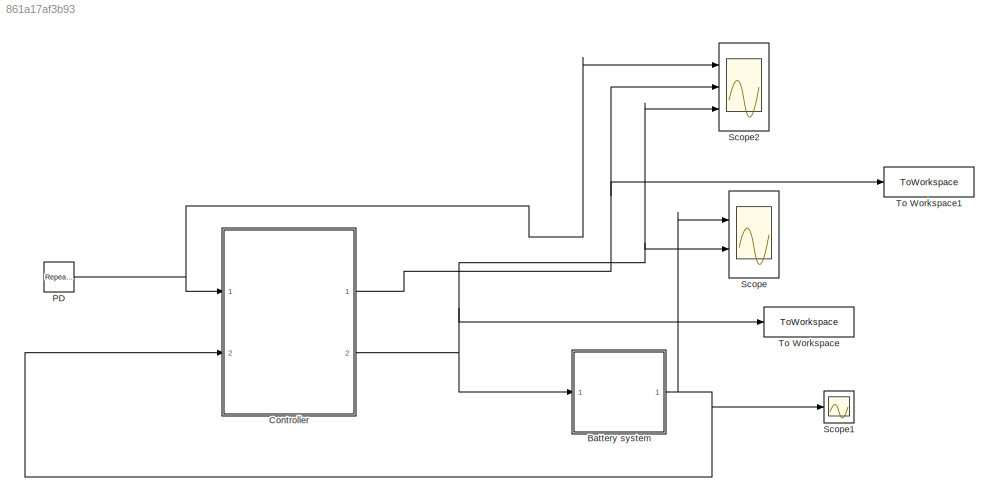
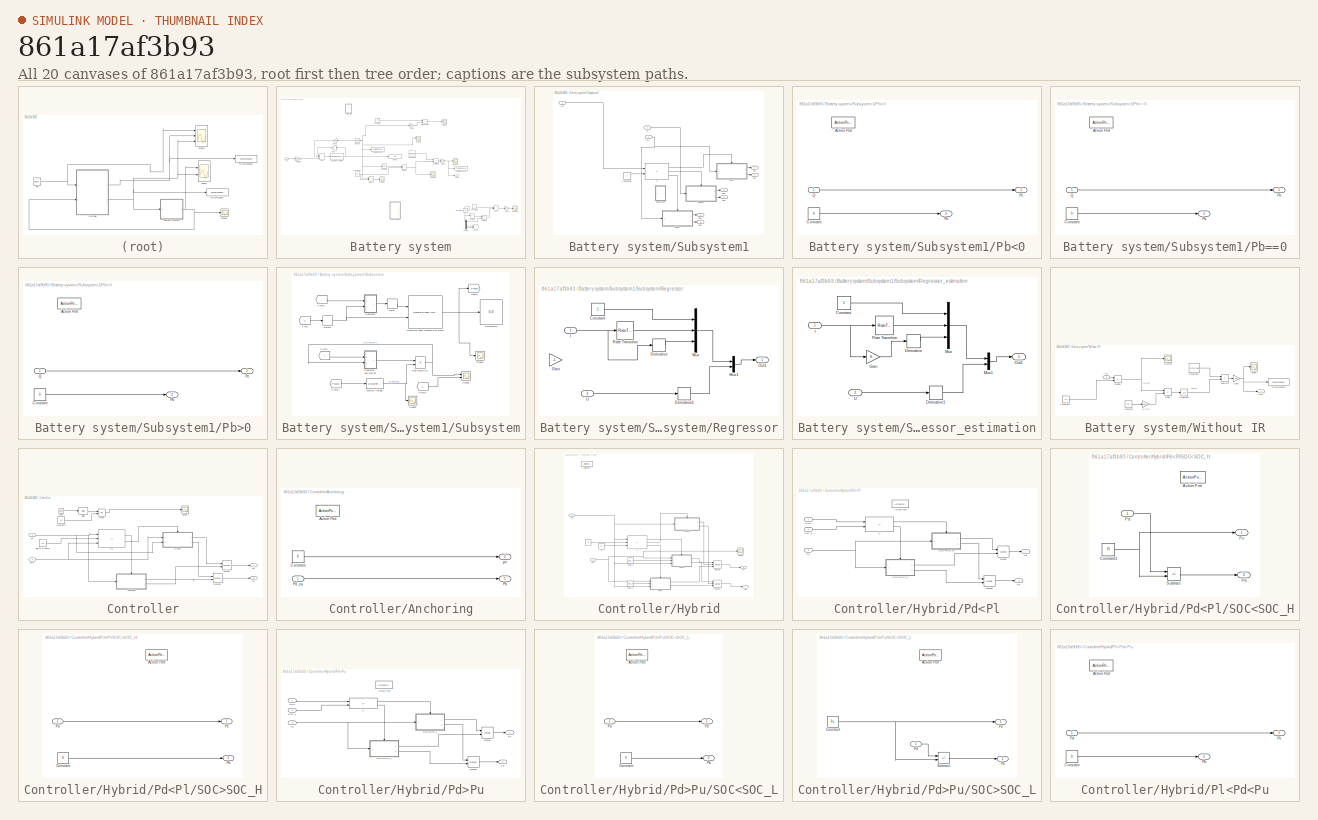
[diagram: thumbnail index - all 20 canvases of the model, root first then tree order]
MODEL slx_861a17af3b93
KIND model
CONFIG AbsTol = auto
CONFIG EnableMultiTasking = off
CONFIG FixedStep = auto
CONFIG MaxStep = auto
CONFIG MinStep = auto
CONFIG RelTol = 1
CONFIG SampleTimeConstraint = Unconstrained
CONFIG SolverName = VariableStepAuto
CONFIG StartTime = 0.0
CONFIG StopTime = 274
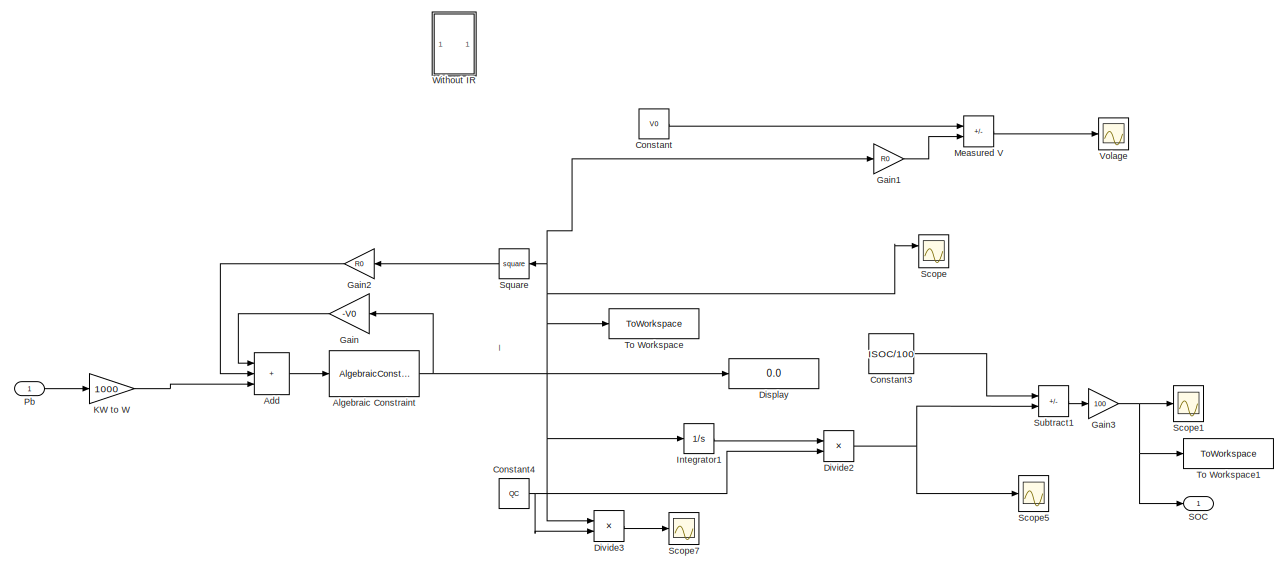
[diagram: Battery system - part 1/2, full width, middle band]
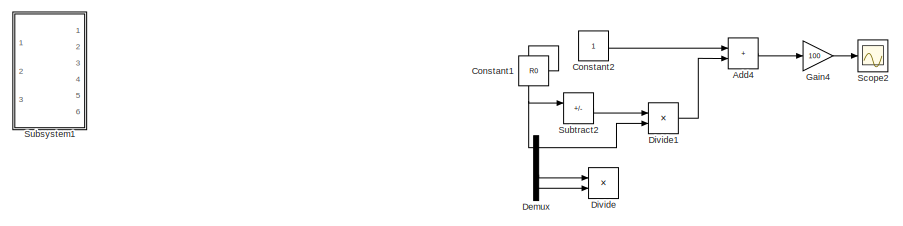
[diagram: Battery system - part 2/2, bottom right region]
BLOCK [SubSystem] Battery system
  Ports = [1, 1]
  RequestExecContextInheritance = off
BLOCK [Sum] Battery system/Add
  IconShape = rectangular
  Inputs = +++
  Ports = [3, 1]
BLOCK [Sum] Battery system/Add4
  Commented = on
  IconShape = rectangular
  Ports = [2, 1]
BLOCK [AlgebraicConstraint] Battery system/Algebraic Constraint
  InitialGuess = -999999999999
BLOCK [Constant] Battery system/Constant
  Value = V0
BLOCK [Constant] Battery system/Constant1
  Commented = on
  Value = R0
BLOCK [Constant] Battery system/Constant2
  Commented = on
BLOCK [Constant] Battery system/Constant3
  Value = ISOC/100
BLOCK [Constant] Battery system/Constant4
  Value = QC
BLOCK [Demux] Battery system/Demux
  Commented = on
  Ports = [1, 4]
BLOCK [Display] Battery system/Display
  Decimation = 1
  Ports = [1]
BLOCK [Product] Battery system/Divide
  Commented = on
  Inputs = */
  Ports = [2, 1]
BLOCK [Product] Battery system/Divide1
  Commented = on
  Inputs = */
  Ports = [2, 1]
BLOCK [Product] Battery system/Divide2
  Inputs = */
  Ports = [2, 1]
BLOCK [Product] Battery system/Divide3
  Inputs = */
  Ports = [2, 1]
BLOCK [Gain] Battery system/Gain
  Gain = -V0
  NameLocation = top
BLOCK [Gain] Battery system/Gain1
  Gain = R0
BLOCK [Gain] Battery system/Gain2
  Gain = R0
  NameLocation = top
BLOCK [Gain] Battery system/Gain3
  Gain = 100
BLOCK [Gain] Battery system/Gain4
  Commented = on
  Gain = 100
BLOCK [Integrator] Battery system/Integrator1
  Ports = [1, 1]
BLOCK [Gain] Battery system/KW to W
  Gain = 1000
BLOCK [Sum] Battery system/Measured V
  IconShape = rectangular
  Inputs = +-
  Ports = [2, 1]
BLOCK [Inport] Battery system/Pb
BLOCK [Outport] Battery system/SOC
BLOCK [Scope] Battery system/Scope
  Floating = off
  NumInputPorts = 2
  Ports = [2]
  ScopeSpecificationString = Simulink.scopes.TimeScopeBlockCfg('CurrentConfiguration', extmgr.ConfigurationSet(extmgr.Configuration('Core','General UI',true),extmgr.Configuration('Core','Source UI',true),extmgr.Configuration('Sources','WiredSimulink',true,'DataLoggingVariableName','ScopeData1'),extmgr.Configuration('Visuals','Time Domain',true,'SerializedDisplays',{struct('MinYLimReal','-728.38262','MaxYLimReal','439.40174','...<+1478ch>
BLOCK [Scope] Battery system/Scope1
  Floating = off
  NumInputPorts = 1
  Ports = [1]
  ScopeSpecificationString = Simulink.scopes.TimeScopeBlockCfg('CurrentConfiguration', extmgr.ConfigurationSet(extmgr.Configuration('Core','General UI',true),extmgr.Configuration('Core','Source UI',true),extmgr.Configuration('Sources','WiredSimulink',true,'DataLoggingVariableName','ScopeData2'),extmgr.Configuration('Visuals','Time Domain',true,'SerializedDisplays',{struct('MinYLimReal','12.5','MaxYLimReal','87.5','YLabelReal'...<+1457ch>
BLOCK [Scope] Battery system/Scope2
  Commented = on
  Floating = off
  NumInputPorts = 1
  Ports = [1]
  ScopeSpecificationString = Simulink.scopes.TimeScopeBlockCfg('CurrentConfiguration', extmgr.ConfigurationSet(extmgr.Configuration('Core','General UI',true),extmgr.Configuration('Core','Source UI',true),extmgr.Configuration('Sources','WiredSimulink',true,'DataLoggingVariableName','ScopeData1'),extmgr.Configuration('Visuals','Time Domain',true,'SerializedDisplays',{struct('MinYLimReal','172.2144','MaxYLimReal','274.68275','YL...<+1422ch>
BLOCK [Scope] Battery system/Scope5
  Floating = off
  NumInputPorts = 1
  Ports = [1]
  ScopeSpecificationString = Simulink.scopes.TimeScopeBlockCfg('CurrentConfiguration', extmgr.ConfigurationSet(extmgr.Configuration('Core','General UI',true),extmgr.Configuration('Core','Source UI',true),extmgr.Configuration('Sources','WiredSimulink',true,'DataLoggingVariableName','ScopeData6'),extmgr.Configuration('Visuals','Time Domain',true,'SerializedDisplays',{struct('MinYLimReal','-0.375','MaxYLimReal','0.375','YLabelRe...<+1470ch>
BLOCK [Scope] Battery system/Scope7
  Floating = off
  NumInputPorts = 1
  Ports = [1]
  ScopeSpecificationString = Simulink.scopes.TimeScopeBlockCfg('CurrentConfiguration', extmgr.ConfigurationSet(extmgr.Configuration('Core','General UI',true,'FigureColor',[1 1 1]),extmgr.Configuration('Core','Source UI',true),extmgr.Configuration('Sources','WiredSimulink',true,'DataLoggingVariableName','ScopeData1'),extmgr.Configuration('Visuals','Time Domain',true,'SerializedDisplays',{struct('MinYLimReal','-0.09712','MaxYLi...<+1516ch>
BLOCK [Math] Battery system/Square
  NameLocation = top
  Operator = square
  Ports = [1, 1]
BLOCK [SubSystem] Battery system/Subsystem1
  Commented = on
  Ports = [3, 6]
  RequestExecContextInheritance = off
BLOCK [Constant] Battery system/Subsystem1/Constant5
  Value = 0
BLOCK [If] Battery system/Subsystem1/If
  ElseIfExpressions = u1 == u2
  IfExpression = u1 > u2
  NumInputs = 2
  Ports = [2, 3]
BLOCK [Inport] Battery system/Subsystem1/In1
BLOCK [Outport] Battery system/Subsystem1/Pb
  Port = 2
BLOCK [Outport] Battery system/Subsystem1/Pb1
  Port = 4
BLOCK [Outport] Battery system/Subsystem1/Pb2
  Port = 6
BLOCK [SubSystem] Battery system/Subsystem1/Pb<0
  Ports = [1, 2, 0, 0, 0, 0, 0, 1]
  RequestExecContextInheritance = off
  TreatAsAtomicUnit = on
BLOCK [ActionPort] Battery system/Subsystem1/Pb<0/Action Port
  ActionPortLabel = else
BLOCK [Constant] Battery system/Subsystem1/Pb<0/Constant
  Value = 0
BLOCK [Outport] Battery system/Subsystem1/Pb<0/Pb
  Port = 2
BLOCK [Outport] Battery system/Subsystem1/Pb<0/Pe
BLOCK [Inport] Battery system/Subsystem1/Pb<0/Q
BLOCK [SubSystem] Battery system/Subsystem1/Pb==0
  Ports = [1, 2, 0, 0, 0, 0, 0, 1]
  RequestExecContextInheritance = off
  TreatAsAtomicUnit = on
BLOCK [ActionPort] Battery system/Subsystem1/Pb==0/Action Port
  ActionPortLabel = elseif(u1 == u2)
BLOCK [Constant] Battery system/Subsystem1/Pb==0/Constant
  Value = 0
BLOCK [Outport] Battery system/Subsystem1/Pb==0/Pb
  Port = 2
BLOCK [Outport] Battery system/Subsystem1/Pb==0/Pe
BLOCK [Inport] Battery system/Subsystem1/Pb==0/Q
BLOCK [SubSystem] Battery system/Subsystem1/Pb>0
  Ports = [1, 2, 0, 0, 0, 0, 0, 1]
  RequestExecContextInheritance = off
  TreatAsAtomicUnit = on
BLOCK [ActionPort] Battery system/Subsystem1/Pb>0/Action Port
  ActionPortLabel = if(u1 > u2)
BLOCK [Constant] Battery system/Subsystem1/Pb>0/Constant
  Value = 0
BLOCK [Outport] Battery system/Subsystem1/Pb>0/Pb
  Port = 2
BLOCK [Outport] Battery system/Subsystem1/Pb>0/Pe
BLOCK [Inport] Battery system/Subsystem1/Pb>0/Q
BLOCK [Outport] Battery system/Subsystem1/Pe
BLOCK [Outport] Battery system/Subsystem1/Pe1
  Port = 3
BLOCK [Outport] Battery system/Subsystem1/Pe2
  Port = 5
BLOCK [Inport] Battery system/Subsystem1/Q
  Port = 2
BLOCK [Inport] Battery system/Subsystem1/Q1
  Port = 3
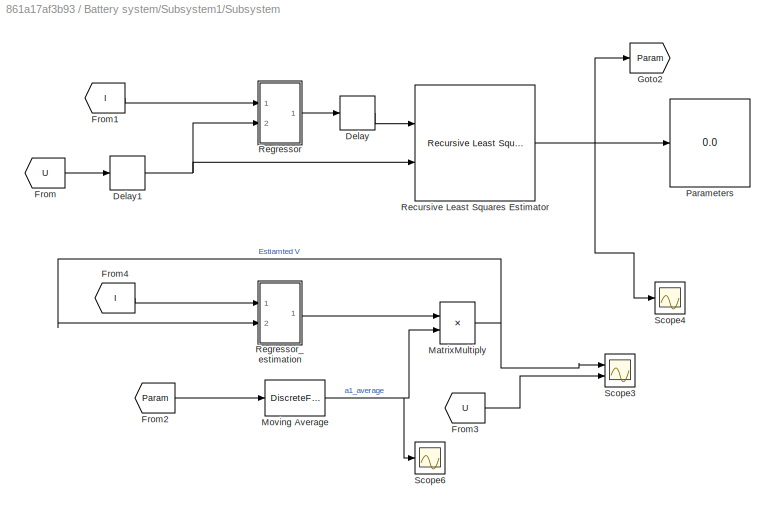
BLOCK [SubSystem] Battery system/Subsystem1/Subsystem
  Ports = []
  RequestExecContextInheritance = off
BLOCK [Delay] Battery system/Subsystem1/Subsystem/Delay
  Commented = on
  DelayLength = 1
  InitialCondition = 1
  InputPortMap = u0
  Ports = [1, 1]
BLOCK [Delay] Battery system/Subsystem1/Subsystem/Delay1
  Commented = on
  DelayLength = 1
  InitialCondition = 1
  InputPortMap = u0
  Ports = [1, 1]
BLOCK [From] Battery system/Subsystem1/Subsystem/From
  Commented = on
  GotoTag = U
BLOCK [From] Battery system/Subsystem1/Subsystem/From1
  Commented = on
  GotoTag = I
BLOCK [From] Battery system/Subsystem1/Subsystem/From2
  Commented = on
  GotoTag = Param
BLOCK [From] Battery system/Subsystem1/Subsystem/From3
  Commented = on
  GotoTag = U
BLOCK [From] Battery system/Subsystem1/Subsystem/From4
  Commented = on
  GotoTag = I
BLOCK [Goto] Battery system/Subsystem1/Subsystem/Goto2
  Commented = on
  GotoTag = Param
BLOCK [Product] Battery system/Subsystem1/Subsystem/MatrixMultiply
  Commented = on
  Multiplication = Matrix(*)
  Ports = [2, 1]
BLOCK [DiscreteFilter] Battery system/Subsystem1/Subsystem/Moving Average
  Commented = on
  Denominator = [1 -(1-1/200)]
  InputPortMap = u0
  Numerator = [0 1/200]
  Ports = [1, 1]
BLOCK [Display] Battery system/Subsystem1/Subsystem/Parameters
  Commented = on
  Decimation = 1
  Ports = [1]
BLOCK [Reference] Battery system/Subsystem1/Subsystem/Recursive Least Squares Estimator  REF=ctrlSharedLib/Recursive Least Squares Estimator
  Commented = on
  Ports = [2, 1]
  SourceBlock = ctrlSharedLib/Recursive Least Squares Estimator
  SourceProductBaseCode = CT,ID
  SourceType = idEstimatorsRLS
BLOCK [SubSystem] Battery system/Subsystem1/Subsystem/Regressor
  Commented = on
  Ports = [2, 1]
  RequestExecContextInheritance = off
BLOCK [Constant] Battery system/Subsystem1/Subsystem/Regressor/Constant
BLOCK [Derivative] Battery system/Subsystem1/Subsystem/Regressor/Derivative
BLOCK [Derivative] Battery system/Subsystem1/Subsystem/Regressor/Derivative1
  CoefficientInTFapproximation = -inf
BLOCK [Gain] Battery system/Subsystem1/Subsystem/Regressor/Gain
  Gain = -1
BLOCK [Inport] Battery system/Subsystem1/Subsystem/Regressor/I
BLOCK [Mux] Battery system/Subsystem1/Subsystem/Regressor/Mux
  DisplayOption = bar
  Inputs = 3
  Ports = [3, 1]
BLOCK [Mux] Battery system/Subsystem1/Subsystem/Regressor/Mux1
  DisplayOption = bar
  Inputs = 2
  Ports = [2, 1]
BLOCK [Outport] Battery system/Subsystem1/Subsystem/Regressor/Out1
BLOCK [RateTransition] Battery system/Subsystem1/Subsystem/Regressor/Rate Transition
  InitialCondition = 1
BLOCK [Inport] Battery system/Subsystem1/Subsystem/Regressor/U
  Port = 2
BLOCK [SubSystem] Battery system/Subsystem1/Subsystem/Regressor_estimation
  Commented = on
  Ports = [2, 1]
  RequestExecContextInheritance = off
BLOCK [Constant] Battery system/Subsystem1/Subsystem/Regressor_estimation/Constant
BLOCK [Derivative] Battery system/Subsystem1/Subsystem/Regressor_estimation/Derivative
BLOCK [Derivative] Battery system/Subsystem1/Subsystem/Regressor_estimation/Derivative1
  CoefficientInTFapproximation = -inf
BLOCK [Gain] Battery system/Subsystem1/Subsystem/Regressor_estimation/Gain
BLOCK [Inport] Battery system/Subsystem1/Subsystem/Regressor_estimation/I
BLOCK [Mux] Battery system/Subsystem1/Subsystem/Regressor_estimation/Mux
  DisplayOption = bar
  Inputs = 3
  Ports = [3, 1]
BLOCK [Mux] Battery system/Subsystem1/Subsystem/Regressor_estimation/Mux1
  DisplayOption = bar
  Inputs = 2
  Ports = [2, 1]
BLOCK [Outport] Battery system/Subsystem1/Subsystem/Regressor_estimation/Out1
BLOCK [RateTransition] Battery system/Subsystem1/Subsystem/Regressor_estimation/Rate Transition
BLOCK [Inport] Battery system/Subsystem1/Subsystem/Regressor_estimation/U
  Port = 2
BLOCK [Scope] Battery system/Subsystem1/Subsystem/Scope3
  Commented = on
  Floating = off
  NumInputPorts = 2
  Ports = [2]
  ScopeSpecificationString = Simulink.scopes.TimeScopeBlockCfg('CurrentConfiguration', extmgr.ConfigurationSet(extmgr.Configuration('Core','General UI',true),extmgr.Configuration('Core','Source UI',true),extmgr.Configuration('Sources','WiredSimulink',true,'DataLoggingVariableName','ScopeData2'),extmgr.Configuration('Visuals','Time Domain',true,'SerializedDisplays',{struct('MinYLimReal','174.83462','MaxYLimReal','410.98528','Y...<+1561ch>
BLOCK [Scope] Battery system/Subsystem1/Subsystem/Scope4
  Commented = on
  Floating = off
  NumInputPorts = 1
  Ports = [1]
  ScopeSpecificationString = Simulink.scopes.TimeScopeBlockCfg('CurrentConfiguration', extmgr.ConfigurationSet(extmgr.Configuration('Core','General UI',true),extmgr.Configuration('Core','Source UI',true),extmgr.Configuration('Sources','WiredSimulink',true,'DataLoggingVariableName','ScopeData3'),extmgr.Configuration('Visuals','Time Domain',true,'SerializedDisplays',{struct('MinYLimReal','-0.000031','MaxYLimReal','0.000062','YL...<+1681ch>
BLOCK [Scope] Battery system/Subsystem1/Subsystem/Scope6
  Commented = on
  Floating = off
  NumInputPorts = 1
  Ports = [1]
  ScopeSpecificationString = Simulink.scopes.TimeScopeBlockCfg('CurrentConfiguration', extmgr.ConfigurationSet(extmgr.Configuration('Core','General UI',true),extmgr.Configuration('Core','Source UI',true),extmgr.Configuration('Sources','WiredSimulink',true,'DataLoggingVariableName','ScopeData4'),extmgr.Configuration('Visuals','Time Domain',true,'SerializedDisplays',{struct('MinYLimReal','-0.000005','MaxYLimReal','0.000061','YL...<+1589ch>
BLOCK [Sum] Battery system/Subtract1
  IconShape = rectangular
  Inputs = +-
  Ports = [2, 1]
BLOCK [Sum] Battery system/Subtract2
  Commented = on
  IconShape = rectangular
  Inputs = +-
  Ports = [2, 1]
BLOCK [ToWorkspace] Battery system/To Workspace
  FixptAsFi = on
  MaxDataPoints = inf
  Ports = [1]
  SampleTime = -1
  SaveFormat = Structure With Time
  VariableName = I
BLOCK [ToWorkspace] Battery system/To Workspace1
  FixptAsFi = on
  MaxDataPoints = inf
  Ports = [1]
  SampleTime = -1
  SaveFormat = Structure With Time
  VariableName = s
BLOCK [Scope] Battery system/Volage
  Floating = off
  NumInputPorts = 1
  Ports = [1]
  ScopeSpecificationString = Simulink.scopes.TimeScopeBlockCfg('CurrentConfiguration', extmgr.ConfigurationSet(extmgr.Configuration('Core','General UI',true),extmgr.Configuration('Core','Source UI',true),extmgr.Configuration('Sources','WiredSimulink',true,'DataLoggingVariableName','ScopeData1'),extmgr.Configuration('Visuals','Time Domain',true,'SerializedDisplays',{struct('MinYLimReal','708.07951','MaxYLimReal','799.63744','Y...<+1489ch>
BLOCK [SubSystem] Battery system/Without IR
  Ports = [1, 1]
  RequestExecContextInheritance = off
BLOCK [Constant] Battery system/Without IR/Constant
  Commented = on
  Value = QC
BLOCK [Constant] Battery system/Without IR/Constant1
  Commented = on
  Value = ISOC/100
BLOCK [Constant] Battery system/Without IR/Constant2
  Commented = on
  Value = V0
BLOCK [Scope] Battery system/Without IR/Current
  Commented = on
  Floating = off
  NumInputPorts = 1
  Ports = [1]
  ScopeSpecificationString = Simulink.scopes.TimeScopeBlockCfg('CurrentConfiguration', extmgr.ConfigurationSet(extmgr.Configuration('Core','General UI',true),extmgr.Configuration('Core','Source UI',true),extmgr.Configuration('Sources','WiredSimulink',true,'DataLoggingVariableName','ScopeData4'),extmgr.Configuration('Visuals','Time Domain',true,'SerializedDisplays',{struct('MinYLimReal','-5611.34168','MaxYLimReal','5601.96893'...<+1417ch>
BLOCK [Product] Battery system/Without IR/Divide
  Commented = on
  Inputs = */
  Ports = [2, 1]
BLOCK [Product] Battery system/Without IR/Divide1
  Commented = on
  Inputs = */
  Ports = [2, 1]
BLOCK [Gain] Battery system/Without IR/Gain1
  Commented = on
  Gain = 100
BLOCK [Gain] Battery system/Without IR/H to s
  Commented = on
  Gain = 3600
BLOCK [Inport] Battery system/Without IR/In1
BLOCK [Integrator] Battery system/Without IR/Integrator
  Commented = on
  Ports = [1, 1]
BLOCK [Outport] Battery system/Without IR/Out1
BLOCK [Scope] Battery system/Without IR/Scope
  Commented = on
  Floating = off
  NumInputPorts = 1
  Ports = [1]
  ScopeSpecificationString = Simulink.scopes.TimeScopeBlockCfg('CurrentConfiguration', extmgr.ConfigurationSet(extmgr.Configuration('Core','General UI',true),extmgr.Configuration('Core','Source UI',true),extmgr.Configuration('Sources','WiredSimulink',true,'DataLoggingVariableName','ScopeData1'),extmgr.Configuration('Visuals','Time Domain',true,'SerializedDisplays',{struct('MinYLimReal','-74180.20543','MaxYLimReal','8297.8006'...<+1506ch>
BLOCK [Sum] Battery system/Without IR/Subtract
  Commented = on
  IconShape = rectangular
  Inputs = +-
  Ports = [2, 1]
BLOCK [ToWorkspace] Battery system/Without IR/To Workspace1
  Commented = on
  FixptAsFi = on
  MaxDataPoints = inf
  Ports = [1]
  SampleTime = -1
  VariableName = SOC
BLOCK [SubSystem] Controller
  Ports = [2, 2]
  RequestExecContextInheritance = off
BLOCK [SubSystem] Controller/Anchoring
  Ports = [1, 2, 0, 0, 0, 0, 0, 1]
  RequestExecContextInheritance = off
  TreatAsAtomicUnit = on
BLOCK [ActionPort] Controller/Anchoring/Action Port
  ActionPortLabel = if(((u1<=u2)&(u3>=20)))
BLOCK [Constant] Controller/Anchoring/Constant
  NameLocation = left
  Value = 0
BLOCK [Outport] Controller/Anchoring/Pb
BLOCK [Inport] Controller/Anchoring/Pd_sy
BLOCK [Outport] Controller/Anchoring/pe
  Port = 2
BLOCK [Constant] Controller/Berth n Anchor
  Value = 114
BLOCK [Bias] Controller/Bias
  Bias = 6
  SaturateOnIntegerOverflow = off
BLOCK [Clock] Controller/Clock
BLOCK [Constant] Controller/Constant1
  Value = 24
BLOCK [SubSystem] Controller/Hybrid
  Ports = [2, 2, 0, 0, 0, 0, 0, 1]
  RequestExecContextInheritance = off
  TreatAsAtomicUnit = on
BLOCK [Constant] Controller/Hybrid/   
  Value = Pu
BLOCK [Constant] Controller/Hybrid/   1
  Value = Pl
BLOCK [ActionPort] Controller/Hybrid/Action Port
  ActionPortLabel = else
BLOCK [If] Controller/Hybrid/If
  ElseIfExpressions = u1>u3
  IfExpression = u1 > u2
  NumInputs = 3
  Ports = [3, 3]
BLOCK [Merge] Controller/Hybrid/Merge
  Inputs = 3
  Ports = [3, 1]
BLOCK [Merge] Controller/Hybrid/Merge1
  Inputs = 3
  Ports = [3, 1]
BLOCK [Outport] Controller/Hybrid/Pb
  Port = 2
BLOCK [Inport] Controller/Hybrid/Pd
  Port = 2
BLOCK [SubSystem] Controller/Hybrid/Pd<Pl
  Ports = [3, 2, 0, 0, 0, 0, 0, 1]
  RequestExecContextInheritance = off
  TreatAsAtomicUnit = on
BLOCK [ActionPort] Controller/Hybrid/Pd<Pl/Action Port
  ActionPortLabel = else
BLOCK [If] Controller/Hybrid/Pd<Pl/If
  IfExpression = u1 >= u2
  NumInputs = 2
  Ports = [2, 2]
BLOCK [Merge] Controller/Hybrid/Pd<Pl/Merge
  Ports = [2, 1]
BLOCK [Merge] Controller/Hybrid/Pd<Pl/Merge1
  Ports = [2, 1]
BLOCK [Outport] Controller/Hybrid/Pd<Pl/Pb
  Port = 2
BLOCK [Inport] Controller/Hybrid/Pd<Pl/Pd
  Port = 3
BLOCK [Outport] Controller/Hybrid/Pd<Pl/Pe
BLOCK [Inport] Controller/Hybrid/Pd<Pl/SOC
BLOCK [SubSystem] Controller/Hybrid/Pd<Pl/SOC<SOC_H
  Ports = [1, 2, 0, 0, 0, 0, 0, 1]
  RequestExecContextInheritance = off
  TreatAsAtomicUnit = on
BLOCK [ActionPort] Controller/Hybrid/Pd<Pl/SOC<SOC_H/Action Port
  ActionPortLabel = else
BLOCK [Constant] Controller/Hybrid/Pd<Pl/SOC<SOC_H/Constant1
  Value = Pl
BLOCK [Outport] Controller/Hybrid/Pd<Pl/SOC<SOC_H/Pb
  Port = 2
BLOCK [Inport] Controller/Hybrid/Pd<Pl/SOC<SOC_H/Pd
BLOCK [Outport] Controller/Hybrid/Pd<Pl/SOC<SOC_H/Pe
BLOCK [Sum] Controller/Hybrid/Pd<Pl/SOC<SOC_H/Subtract
  IconShape = rectangular
  Inputs = +-
  Ports = [2, 1]
BLOCK [SubSystem] Controller/Hybrid/Pd<Pl/SOC>SOC_H
  Ports = [1, 2, 0, 0, 0, 0, 0, 1]
  RequestExecContextInheritance = off
  TreatAsAtomicUnit = on
BLOCK [ActionPort] Controller/Hybrid/Pd<Pl/SOC>SOC_H/Action Port
  ActionPortLabel = if(u1 >= u2)
BLOCK [Constant] Controller/Hybrid/Pd<Pl/SOC>SOC_H/Constant
  Value = 0
BLOCK [Outport] Controller/Hybrid/Pd<Pl/SOC>SOC_H/Pb
  Port = 2
BLOCK [Inport] Controller/Hybrid/Pd<Pl/SOC>SOC_H/Pd
BLOCK [Outport] Controller/Hybrid/Pd<Pl/SOC>SOC_H/Pe
BLOCK [Inport] Controller/Hybrid/Pd<Pl/SOC_H
  Port = 2
BLOCK [SubSystem] Controller/Hybrid/Pd>Pu
  Ports = [3, 2, 0, 0, 0, 0, 0, 1]
  RequestExecContextInheritance = off
  TreatAsAtomicUnit = on
BLOCK [ActionPort] Controller/Hybrid/Pd>Pu/Action Port
  ActionPortLabel = if(u1 > u2)
BLOCK [If] Controller/Hybrid/Pd>Pu/If
  IfExpression = u1 > u2
  NumInputs = 2
  Ports = [2, 2]
BLOCK [Merge] Controller/Hybrid/Pd>Pu/Merge
  Ports = [2, 1]
BLOCK [Merge] Controller/Hybrid/Pd>Pu/Merge1
  Ports = [2, 1]
BLOCK [Outport] Controller/Hybrid/Pd>Pu/Pb
  Port = 2
BLOCK [Inport] Controller/Hybrid/Pd>Pu/Pd
  Port = 3
BLOCK [Outport] Controller/Hybrid/Pd>Pu/Pe
BLOCK [Inport] Controller/Hybrid/Pd>Pu/SOC
BLOCK [SubSystem] Controller/Hybrid/Pd>Pu/SOC<SOC_L
  Ports = [1, 2, 0, 0, 0, 0, 0, 1]
  RequestExecContextInheritance = off
  TreatAsAtomicUnit = on
BLOCK [ActionPort] Controller/Hybrid/Pd>Pu/SOC<SOC_L/Action Port
  ActionPortLabel = else
BLOCK [Constant] Controller/Hybrid/Pd>Pu/SOC<SOC_L/Constant
  Value = 0
BLOCK [Outport] Controller/Hybrid/Pd>Pu/SOC<SOC_L/Pb
  Port = 2
BLOCK [Inport] Controller/Hybrid/Pd>Pu/SOC<SOC_L/Pd
BLOCK [Outport] Controller/Hybrid/Pd>Pu/SOC<SOC_L/Pe
BLOCK [SubSystem] Controller/Hybrid/Pd>Pu/SOC>SOC_L
  Ports = [1, 2, 0, 0, 0, 0, 0, 1]
  RequestExecContextInheritance = off
  TreatAsAtomicUnit = on
BLOCK [ActionPort] Controller/Hybrid/Pd>Pu/SOC>SOC_L/Action Port
  ActionPortLabel = if(u1 > u2)
BLOCK [Constant] Controller/Hybrid/Pd>Pu/SOC>SOC_L/Constant
  Value = Pu
BLOCK [Outport] Controller/Hybrid/Pd>Pu/SOC>SOC_L/Pb
  Port = 2
BLOCK [Inport] Controller/Hybrid/Pd>Pu/SOC>SOC_L/Pd
BLOCK [Outport] Controller/Hybrid/Pd>Pu/SOC>SOC_L/Pe
BLOCK [Sum] Controller/Hybrid/Pd>Pu/SOC>SOC_L/Subtract
  IconShape = rectangular
  Inputs = +-
  Ports = [2, 1]
BLOCK [Inport] Controller/Hybrid/Pd>Pu/SOC_L
  Port = 2
BLOCK [Outport] Controller/Hybrid/Pe
BLOCK [SubSystem] Controller/Hybrid/Pl<Pd<Pu
  Ports = [1, 2, 0, 0, 0, 0, 0, 1]
  RequestExecContextInheritance = off
  TreatAsAtomicUnit = on
BLOCK [ActionPort] Controller/Hybrid/Pl<Pd<Pu/Action Port
  ActionPortLabel = elseif(u1>u3)
BLOCK [Constant] Controller/Hybrid/Pl<Pd<Pu/Constant
  Value = 0
BLOCK [Outport] Controller/Hybrid/Pl<Pd<Pu/Pb
  Port = 2
BLOCK [Inport] Controller/Hybrid/Pl<Pd<Pu/Pd
BLOCK [Outport] Controller/Hybrid/Pl<Pd<Pu/Pe
BLOCK [Inport] Controller/Hybrid/SOC
BLOCK [Constant] Controller/Hybrid/SOC_H
  NameLocation = left
  Value = SOC_H
BLOCK [Constant] Controller/Hybrid/SOC_L
  NameLocation = left
  Value = SOC_L
BLOCK [Scope] Controller/Hybrid/Scope
  Floating = off
  NumInputPorts = 1
  Ports = [1]
  ScopeSpecificationString = Simulink.scopes.TimeScopeBlockCfg('CurrentConfiguration', extmgr.ConfigurationSet(extmgr.Configuration('Core','General UI',true),extmgr.Configuration('Core','Source UI',true),extmgr.Configuration('Sources','WiredSimulink',true,'DataLoggingVariableName','ScopeData1'),extmgr.Configuration('Visuals','Time Domain',true,'SerializedDisplays',{struct('MinYLimReal','59.98264','MaxYLimReal','60.15625','YLa...<+1457ch>
BLOCK [If] Controller/If1
  IfExpression = ((u1<=u2)&(u3>=20))
  NumInputs = 3
  Ports = [3, 2]
BLOCK [Merge] Controller/Merge
  Ports = [2, 1]
BLOCK [Merge] Controller/Merge1
  Ports = [2, 1]
BLOCK [Outport] Controller/Pb
  Port = 2
BLOCK [Inport] Controller/Pd
BLOCK [Outport] Controller/Pe
BLOCK [Math] Controller/Rem
  Operator = rem
  Ports = [2, 1]
BLOCK [Inport] Controller/SOC
  Port = 2
BLOCK [Scope] Controller/Scope
  Floating = off
  NumInputPorts = 1
  Ports = [1]
  ScopeSpecificationString = Simulink.scopes.TimeScopeBlockCfg('CurrentConfiguration', extmgr.ConfigurationSet(extmgr.Configuration('Core','General UI',true),extmgr.Configuration('Core','Source UI',true),extmgr.Configuration('Sources','WiredSimulink',true,'DataLoggingVariableName','ScopeData1'),extmgr.Configuration('Visuals','Time Domain',true,'SerializedDisplays',{struct('MinYLimReal','-2.875','MaxYLimReal','25.875','YLabelR...<+1427ch>
BLOCK [Reference] PD  REF=simulink/Sources/Repeating
Sequence
Interpolated
  Ports = [0, 1]
  SourceBlock = simulink/Sources/Repeating\nSequence\nInterpolated
  SourceProductBaseCode = SL
  SourceType = Repeating Sequence Interpolated
BLOCK [Scope] Scope
  Floating = off
  NumInputPorts = 2
  Ports = [2]
  ScopeSpecificationString = Simulink.scopes.TimeScopeBlockCfg('CurrentConfiguration', extmgr.ConfigurationSet(extmgr.Configuration('Core','General UI',true),extmgr.Configuration('Core','Source UI',true),extmgr.Configuration('Sources','WiredSimulink',true),extmgr.Configuration('Visuals','Time Domain',true,'SerializedDisplays',{struct('MinYLimReal','12.5','MaxYLimReal','87.5','YLabelReal','','MinYLimMag','12.5','MaxYLimMag','8...<+2438ch>
BLOCK [Scope] Scope1
  Floating = off
  NumInputPorts = 1
  Ports = [1]
  ScopeSpecificationString = Simulink.scopes.TimeScopeBlockCfg('CurrentConfiguration', extmgr.ConfigurationSet(extmgr.Configuration('Core','General UI',true),extmgr.Configuration('Core','Source UI',true),extmgr.Configuration('Sources','WiredSimulink',true,'DataLoggingVariableName','ScopeData3'),extmgr.Configuration('Visuals','Time Domain',true,'SerializedDisplays',{struct('MinYLimReal','11.99991','MaxYLimReal','60.2877','YLab...<+1483ch>
BLOCK [Scope] Scope2
  Floating = off
  NumInputPorts = 3
  Ports = [3]
  ScopeSpecificationString = Simulink.scopes.TimeScopeBlockCfg('CurrentConfiguration', extmgr.ConfigurationSet(extmgr.Configuration('Core','General UI',true),extmgr.Configuration('Core','Source UI',true),extmgr.Configuration('Sources','WiredSimulink',true,'DataLoggingVariableName','ScopeData1'),extmgr.Configuration('Visuals','Time Domain',true,'SerializedDisplays',{struct('MinYLimReal','-66.25','MaxYLimReal','1696.25','YLabel...<+2537ch>
BLOCK [ToWorkspace] To Workspace
  FixptAsFi = on
  MaxDataPoints = inf
  Ports = [1]
  SampleTime = -1
  VariableName = P_b
BLOCK [ToWorkspace] To Workspace1
  FixptAsFi = on
  MaxDataPoints = inf
  Ports = [1]
  SampleTime = -1
  VariableName = P_e
ANNOTATION Battery system: I
ANNOTATION Battery system/Without IR: charge
ANNOTATION Battery system/Without IR: current
LINE Battery system/Add4:1 -> Battery system/Gain4:1
LINE Battery system/Add:1 -> Battery system/Algebraic Constraint:1
NET Battery system/Algebraic Constraint:1 -> Battery system/Display:1, Battery system/Divide3:1, Battery system/Gain1:1, Battery system/Gain:1, Battery system/Integrator1:1, Battery system/Scope:1, Battery system/Square:1, Battery system/To Workspace:1
NET Battery system/Constant1:1 -> Battery system/Divide1:2, Battery system/Subtract2:1
LINE Battery system/Constant2:1 -> Battery system/Add4:1
LINE Battery system/Constant3:1 -> Battery system/Subtract1:1
NET Battery system/Constant4:1 -> Battery system/Divide2:2, Battery system/Divide3:2
LINE Battery system/Constant:1 -> Battery system/Measured V:1
LINE Battery system/Demux:3 -> Battery system/Divide:1
LINE Battery system/Demux:4 -> Battery system/Divide:2
LINE Battery system/Divide1:1 -> Battery system/Add4:2
NET Battery system/Divide2:1 -> Battery system/Scope5:1, Battery system/Subtract1:2
LINE Battery system/Divide3:1 -> Battery system/Scope7:1
LINE Battery system/Gain1:1 -> Battery system/Measured V:2
LINE Battery system/Gain2:1 -> Battery system/Add:2
NET Battery system/Gain3:1 -> Battery system/SOC:1, Battery system/Scope1:1, Battery system/To Workspace1:1
LINE Battery system/Gain4:1 -> Battery system/Scope2:1
LINE Battery system/Gain:1 -> Battery system/Add:1
LINE Battery system/Integrator1:1 -> Battery system/Divide2:1
LINE Battery system/KW to W:1 -> Battery system/Add:3
LINE Battery system/Measured V:1 -> Battery system/Volage:1
LINE Battery system/Pb:1 -> Battery system/KW to W:1
LINE Battery system/Square:1 -> Battery system/Gain2:1
LINE Battery system/Subsystem1/Constant5:1 -> Battery system/Subsystem1/If:2
LINE Battery system/Subsystem1/If:1 -> Battery system/Subsystem1/Pb>0:ifaction
LINE Battery system/Subsystem1/If:2 -> Battery system/Subsystem1/Pb==0:ifaction
LINE Battery system/Subsystem1/If:3 -> Battery system/Subsystem1/Pb<0:ifaction
LINE Battery system/Subsystem1/In1:1 -> Battery system/Subsystem1/If:1
LINE Battery system/Subsystem1/Pb<0/Constant:1 -> Battery system/Subsystem1/Pb<0/Pb:1
LINE Battery system/Subsystem1/Pb<0/Q:1 -> Battery system/Subsystem1/Pb<0/Pe:1
LINE Battery system/Subsystem1/Pb<0:1 -> Battery system/Subsystem1/Pe2:1
LINE Battery system/Subsystem1/Pb<0:2 -> Battery system/Subsystem1/Pb2:1
LINE Battery system/Subsystem1/Pb==0/Constant:1 -> Battery system/Subsystem1/Pb==0/Pb:1
LINE Battery system/Subsystem1/Pb==0/Q:1 -> Battery system/Subsystem1/Pb==0/Pe:1
LINE Battery system/Subsystem1/Pb==0:1 -> Battery system/Subsystem1/Pe1:1
LINE Battery system/Subsystem1/Pb==0:2 -> Battery system/Subsystem1/Pb1:1
LINE Battery system/Subsystem1/Pb>0/Constant:1 -> Battery system/Subsystem1/Pb>0/Pb:1
LINE Battery system/Subsystem1/Pb>0/Q:1 -> Battery system/Subsystem1/Pb>0/Pe:1
LINE Battery system/Subsystem1/Pb>0:1 -> Battery system/Subsystem1/Pe:1
LINE Battery system/Subsystem1/Pb>0:2 -> Battery system/Subsystem1/Pb:1
NET Battery system/Subsystem1/Q1:1 -> Battery system/Subsystem1/Pb<0:1, Battery system/Subsystem1/Pb>0:1
LINE Battery system/Subsystem1/Q:1 -> Battery system/Subsystem1/Pb==0:1
NET Battery system/Subsystem1/Subsystem/Delay1:1 -> Battery system/Subsystem1/Subsystem/Recursive Least Squares Estimator:2, Battery system/Subsystem1/Subsystem/Regressor:2
LINE Battery system/Subsystem1/Subsystem/Delay:1 -> Battery system/Subsystem1/Subsystem/Recursive Least Squares Estimator:1
LINE Battery system/Subsystem1/Subsystem/From1:1 -> Battery system/Subsystem1/Subsystem/Regressor:1
LINE Battery system/Subsystem1/Subsystem/From2:1 -> Battery system/Subsystem1/Subsystem/Moving Average:1
LINE Battery system/Subsystem1/Subsystem/From3:1 -> Battery system/Subsystem1/Subsystem/Scope3:2
LINE Battery system/Subsystem1/Subsystem/From4:1 -> Battery system/Subsystem1/Subsystem/Regressor_estimation:1
LINE Battery system/Subsystem1/Subsystem/From:1 -> Battery system/Subsystem1/Subsystem/Delay1:1
NET Battery system/Subsystem1/Subsystem/MatrixMultiply:1 -> Battery system/Subsystem1/Subsystem/Regressor_estimation:2, Battery system/Subsystem1/Subsystem/Scope3:1
NET Battery system/Subsystem1/Subsystem/Moving Average:1 -> Battery system/Subsystem1/Subsystem/MatrixMultiply:2, Battery system/Subsystem1/Subsystem/Scope6:1
NET Battery system/Subsystem1/Subsystem/Recursive Least Squares Estimator:1 -> Battery system/Subsystem1/Subsystem/Goto2:1, Battery system/Subsystem1/Subsystem/Parameters:1, Battery system/Subsystem1/Subsystem/Scope4:1
LINE Battery system/Subsystem1/Subsystem/Regressor/Constant:1 -> Battery system/Subsystem1/Subsystem/Regressor/Mux:1
LINE Battery system/Subsystem1/Subsystem/Regressor/Derivative1:1 -> Battery system/Subsystem1/Subsystem/Regressor/Mux1:2
LINE Battery system/Subsystem1/Subsystem/Regressor/Derivative:1 -> Battery system/Subsystem1/Subsystem/Regressor/Mux:3
NET Battery system/Subsystem1/Subsystem/Regressor/I:1 -> Battery system/Subsystem1/Subsystem/Regressor/Derivative:1, Battery system/Subsystem1/Subsystem/Regressor/Rate Transition:1
LINE Battery system/Subsystem1/Subsystem/Regressor/Mux1:1 -> Battery system/Subsystem1/Subsystem/Regressor/Out1:1
LINE Battery system/Subsystem1/Subsystem/Regressor/Mux:1 -> Battery system/Subsystem1/Subsystem/Regressor/Mux1:1
LINE Battery system/Subsystem1/Subsystem/Regressor/Rate Transition:1 -> Battery system/Subsystem1/Subsystem/Regressor/Mux:2
LINE Battery system/Subsystem1/Subsystem/Regressor/U:1 -> Battery system/Subsystem1/Subsystem/Regressor/Derivative1:1
LINE Battery system/Subsystem1/Subsystem/Regressor:1 -> Battery system/Subsystem1/Subsystem/Delay:1
LINE Battery system/Subsystem1/Subsystem/Regressor_estimation/Constant:1 -> Battery system/Subsystem1/Subsystem/Regressor_estimation/Mux:1
LINE Battery system/Subsystem1/Subsystem/Regressor_estimation/Derivative1:1 -> Battery system/Subsystem1/Subsystem/Regressor_estimation/Mux1:2
LINE Battery system/Subsystem1/Subsystem/Regressor_estimation/Derivative:1 -> Battery system/Subsystem1/Subsystem/Regressor_estimation/Mux:3
LINE Battery system/Subsystem1/Subsystem/Regressor_estimation/Gain:1 -> Battery system/Subsystem1/Subsystem/Regressor_estimation/Derivative:1
NET Battery system/Subsystem1/Subsystem/Regressor_estimation/I:1 -> Battery system/Subsystem1/Subsystem/Regressor_estimation/Gain:1, Battery system/Subsystem1/Subsystem/Regressor_estimation/Rate Transition:1
LINE Battery system/Subsystem1/Subsystem/Regressor_estimation/Mux1:1 -> Battery system/Subsystem1/Subsystem/Regressor_estimation/Out1:1
LINE Battery system/Subsystem1/Subsystem/Regressor_estimation/Mux:1 -> Battery system/Subsystem1/Subsystem/Regressor_estimation/Mux1:1
LINE Battery system/Subsystem1/Subsystem/Regressor_estimation/Rate Transition:1 -> Battery system/Subsystem1/Subsystem/Regressor_estimation/Mux:2
LINE Battery system/Subsystem1/Subsystem/Regressor_estimation/U:1 -> Battery system/Subsystem1/Subsystem/Regressor_estimation/Derivative1:1
LINE Battery system/Subsystem1/Subsystem/Regressor_estimation:1 -> Battery system/Subsystem1/Subsystem/MatrixMultiply:1
LINE Battery system/Subtract1:1 -> Battery system/Gain3:1
LINE Battery system/Subtract2:1 -> Battery system/Divide1:1
LINE Battery system/Without IR/Constant1:1 -> Battery system/Without IR/Subtract:1
LINE Battery system/Without IR/Constant2:1 -> Battery system/Without IR/Divide1:2
LINE Battery system/Without IR/Constant:1 -> Battery system/Without IR/H to s:1
NET Battery system/Without IR/Divide1:1 -> Battery system/Without IR/Current:1, Battery system/Without IR/Divide:1
LINE Battery system/Without IR/Divide:1 -> Battery system/Without IR/Integrator:1
NET Battery system/Without IR/Gain1:1 -> Battery system/Without IR/Out1:1, Battery system/Without IR/Scope:1, Battery system/Without IR/To Workspace1:1
LINE Battery system/Without IR/H to s:1 -> Battery system/Without IR/Divide:2
LINE Battery system/Without IR/In1:1 -> Battery system/Without IR/Divide1:1
LINE Battery system/Without IR/Integrator:1 -> Battery system/Without IR/Subtract:2
LINE Battery system/Without IR/Subtract:1 -> Battery system/Without IR/Gain1:1
NET Battery system:1 -> Controller:2, Scope1:1, Scope:1
LINE Controller/Anchoring/Constant:1 -> Controller/Anchoring/pe:1
LINE Controller/Anchoring/Pd_sy:1 -> Controller/Anchoring/Pb:1
LINE Controller/Anchoring:1 -> Controller/Merge1:2
LINE Controller/Anchoring:2 -> Controller/Merge:2
LINE Controller/Berth n Anchor:1 -> Controller/If1:2
LINE Controller/Bias:1 -> Controller/Rem:1
LINE Controller/Clock:1 -> Controller/Bias:1
LINE Controller/Constant1:1 -> Controller/Rem:2
LINE Controller/Hybrid/   1:1 -> Controller/Hybrid/If:3
LINE Controller/Hybrid/   :1 -> Controller/Hybrid/If:2
LINE Controller/Hybrid/If:1 -> Controller/Hybrid/Pd>Pu:ifaction
LINE Controller/Hybrid/If:2 -> Controller/Hybrid/Pl<Pd<Pu:ifaction
LINE Controller/Hybrid/If:3 -> Controller/Hybrid/Pd<Pl:ifaction
LINE Controller/Hybrid/Merge1:1 -> Controller/Hybrid/Pb:1
LINE Controller/Hybrid/Merge:1 -> Controller/Hybrid/Pe:1
NET Controller/Hybrid/Pd:1 -> Controller/Hybrid/If:1, Controller/Hybrid/Pd<Pl:3, Controller/Hybrid/Pd>Pu:3, Controller/Hybrid/Pl<Pd<Pu:1
LINE Controller/Hybrid/Pd<Pl/If:1 -> Controller/Hybrid/Pd<Pl/SOC>SOC_H:ifaction
LINE Controller/Hybrid/Pd<Pl/If:2 -> Controller/Hybrid/Pd<Pl/SOC<SOC_H:ifaction
LINE Controller/Hybrid/Pd<Pl/Merge1:1 -> Controller/Hybrid/Pd<Pl/Pb:1
LINE Controller/Hybrid/Pd<Pl/Merge:1 -> Controller/Hybrid/Pd<Pl/Pe:1
NET Controller/Hybrid/Pd<Pl/Pd:1 -> Controller/Hybrid/Pd<Pl/SOC<SOC_H:1, Controller/Hybrid/Pd<Pl/SOC>SOC_H:1
LINE Controller/Hybrid/Pd<Pl/SOC:1 -> Controller/Hybrid/Pd<Pl/If:1
NET Controller/Hybrid/Pd<Pl/SOC<SOC_H/Constant1:1 -> Controller/Hybrid/Pd<Pl/SOC<SOC_H/Pe:1, Controller/Hybrid/Pd<Pl/SOC<SOC_H/Subtract:2
LINE Controller/Hybrid/Pd<Pl/SOC<SOC_H/Pd:1 -> Controller/Hybrid/Pd<Pl/SOC<SOC_H/Subtract:1
LINE Controller/Hybrid/Pd<Pl/SOC<SOC_H/Subtract:1 -> Controller/Hybrid/Pd<Pl/SOC<SOC_H/Pb:1
LINE Controller/Hybrid/Pd<Pl/SOC<SOC_H:1 -> Controller/Hybrid/Pd<Pl/Merge:2
LINE Controller/Hybrid/Pd<Pl/SOC<SOC_H:2 -> Controller/Hybrid/Pd<Pl/Merge1:2
LINE Controller/Hybrid/Pd<Pl/SOC>SOC_H/Constant:1 -> Controller/Hybrid/Pd<Pl/SOC>SOC_H/Pb:1
LINE Controller/Hybrid/Pd<Pl/SOC>SOC_H/Pd:1 -> Controller/Hybrid/Pd<Pl/SOC>SOC_H/Pe:1
LINE Controller/Hybrid/Pd<Pl/SOC>SOC_H:1 -> Controller/Hybrid/Pd<Pl/Merge:1
LINE Controller/Hybrid/Pd<Pl/SOC>SOC_H:2 -> Controller/Hybrid/Pd<Pl/Merge1:1
LINE Controller/Hybrid/Pd<Pl/SOC_H:1 -> Controller/Hybrid/Pd<Pl/If:2
LINE Controller/Hybrid/Pd<Pl:1 -> Controller/Hybrid/Merge:3
LINE Controller/Hybrid/Pd<Pl:2 -> Controller/Hybrid/Merge1:3
LINE Controller/Hybrid/Pd>Pu/If:1 -> Controller/Hybrid/Pd>Pu/SOC>SOC_L:ifaction
LINE Controller/Hybrid/Pd>Pu/If:2 -> Controller/Hybrid/Pd>Pu/SOC<SOC_L:ifaction
LINE Controller/Hybrid/Pd>Pu/Merge1:1 -> Controller/Hybrid/Pd>Pu/Pb:1
LINE Controller/Hybrid/Pd>Pu/Merge:1 -> Controller/Hybrid/Pd>Pu/Pe:1
NET Controller/Hybrid/Pd>Pu/Pd:1 -> Controller/Hybrid/Pd>Pu/SOC<SOC_L:1, Controller/Hybrid/Pd>Pu/SOC>SOC_L:1
LINE Controller/Hybrid/Pd>Pu/SOC:1 -> Controller/Hybrid/Pd>Pu/If:1
LINE Controller/Hybrid/Pd>Pu/SOC<SOC_L/Constant:1 -> Controller/Hybrid/Pd>Pu/SOC<SOC_L/Pb:1
LINE Controller/Hybrid/Pd>Pu/SOC<SOC_L/Pd:1 -> Controller/Hybrid/Pd>Pu/SOC<SOC_L/Pe:1
LINE Controller/Hybrid/Pd>Pu/SOC<SOC_L:1 -> Controller/Hybrid/Pd>Pu/Merge:2
LINE Controller/Hybrid/Pd>Pu/SOC<SOC_L:2 -> Controller/Hybrid/Pd>Pu/Merge1:2
NET Controller/Hybrid/Pd>Pu/SOC>SOC_L/Constant:1 -> Controller/Hybrid/Pd>Pu/SOC>SOC_L/Pe:1, Controller/Hybrid/Pd>Pu/SOC>SOC_L/Subtract:2
LINE Controller/Hybrid/Pd>Pu/SOC>SOC_L/Pd:1 -> Controller/Hybrid/Pd>Pu/SOC>SOC_L/Subtract:1
LINE Controller/Hybrid/Pd>Pu/SOC>SOC_L/Subtract:1 -> Controller/Hybrid/Pd>Pu/SOC>SOC_L/Pb:1
LINE Controller/Hybrid/Pd>Pu/SOC>SOC_L:1 -> Controller/Hybrid/Pd>Pu/Merge:1
LINE Controller/Hybrid/Pd>Pu/SOC>SOC_L:2 -> Controller/Hybrid/Pd>Pu/Merge1:1
LINE Controller/Hybrid/Pd>Pu/SOC_L:1 -> Controller/Hybrid/Pd>Pu/If:2
LINE Controller/Hybrid/Pd>Pu:1 -> Controller/Hybrid/Merge:1
LINE Controller/Hybrid/Pd>Pu:2 -> Controller/Hybrid/Merge1:1
LINE Controller/Hybrid/Pl<Pd<Pu/Constant:1 -> Controller/Hybrid/Pl<Pd<Pu/Pb:1
LINE Controller/Hybrid/Pl<Pd<Pu/Pd:1 -> Controller/Hybrid/Pl<Pd<Pu/Pe:1
LINE Controller/Hybrid/Pl<Pd<Pu:1 -> Controller/Hybrid/Merge:2
LINE Controller/Hybrid/Pl<Pd<Pu:2 -> Controller/Hybrid/Merge1:2
NET Controller/Hybrid/SOC:1 -> Controller/Hybrid/Pd<Pl:1, Controller/Hybrid/Pd>Pu:1, Controller/Hybrid/Scope:1
LINE Controller/Hybrid/SOC_H:1 -> Controller/Hybrid/Pd<Pl:2
LINE Controller/Hybrid/SOC_L:1 -> Controller/Hybrid/Pd>Pu:2
LINE Controller/Hybrid:1 -> Controller/Merge:1
LINE Controller/Hybrid:2 -> Controller/Merge1:1
LINE Controller/If1:1 -> Controller/Anchoring:ifaction
LINE Controller/If1:2 -> Controller/Hybrid:ifaction
LINE Controller/Merge1:1 -> Controller/Pb:1
LINE Controller/Merge:1 -> Controller/Pe:1
NET Controller/Pd:1 -> Controller/Anchoring:1, Controller/Hybrid:2, Controller/If1:1
LINE Controller/Rem:1 -> Controller/Scope:1
NET Controller/SOC:1 -> Controller/Hybrid:1, Controller/If1:3
NET Controller:1 -> Scope2:2, To Workspace1:1
NET Controller:2 -> Battery system:1, Scope2:3, Scope:2, To Workspace:1
NET PD:1 -> Controller:1, Scope2:1
note: NET lines group one-source signal fan-out (src -> all destinations, sorted); 1:1 wires keep LINE
